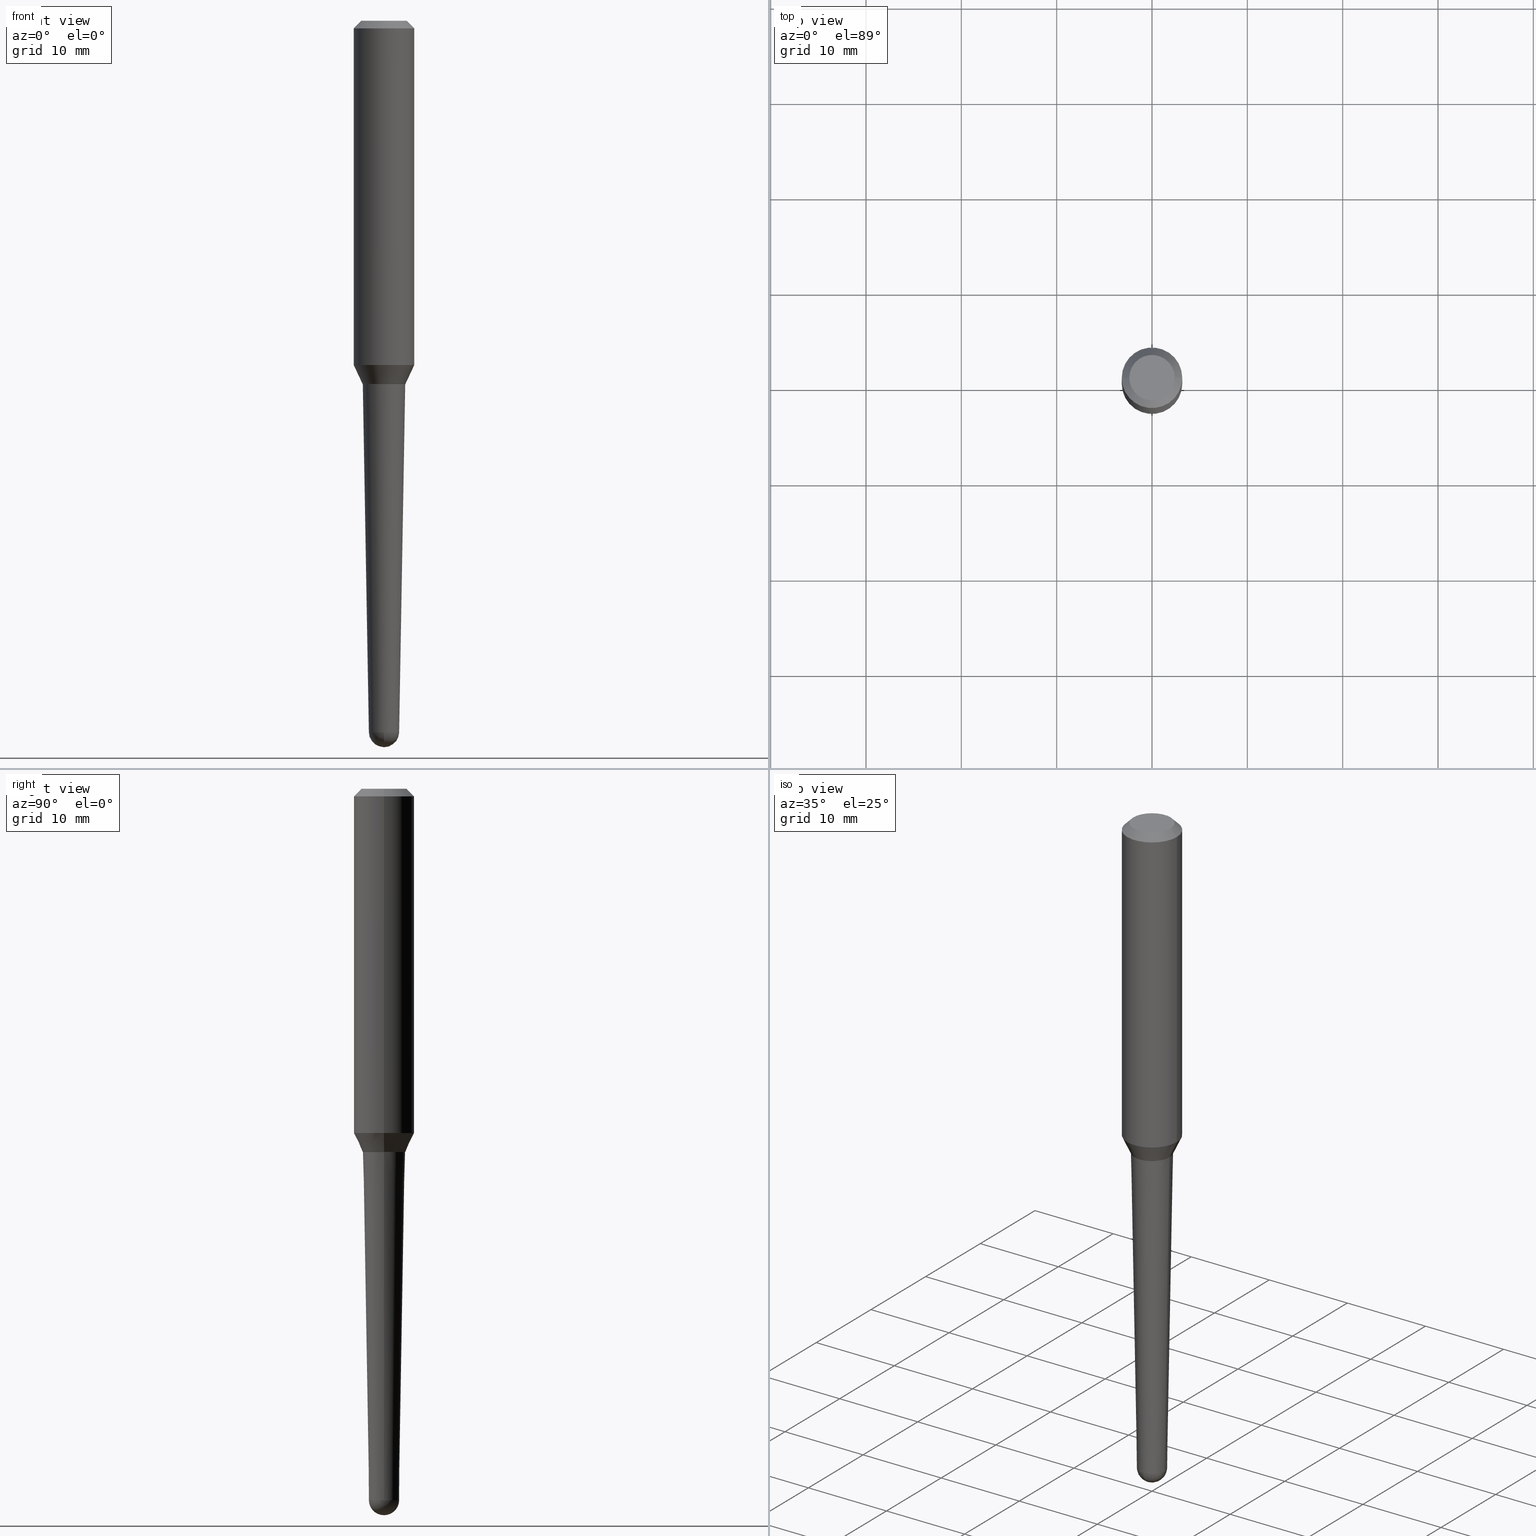
[diagram: canonical four-view strip — front | top / right | iso, engineering-drawing reading convention]
A machine part, canonical four-view strip (front | top / right | iso — engineering-drawing reading convention). The complete STEP part file that produces these views, byte-faithful:
ISO-10303-21;
HEADER;
FILE_DESCRIPTION (( 'STEP AP203' ),
    '1' );
FILE_NAME ('32402.STEP',
    '2024-03-04T15:23:01',
    ( '' ),
    ( '' ),
    'SwSTEP 2.0',
    'SolidWorks 2023',
    '' );
FILE_SCHEMA (( 'CONFIG_CONTROL_DESIGN' ));
ENDSEC;

DATA;
#1 = CARTESIAN_POINT ( 'NONE',  ( 0.000000000000000000, 0.000000000000000000, 0.000000000000000000 ) ) ;
#2 = ORIENTED_EDGE ( 'NONE', *, *, #355, .T. ) ;
#3 = ADVANCED_FACE ( 'NONE', ( #225 ), #180, .T. ) ;
#4 = CIRCLE ( 'NONE', #5, 0.06249048094727445435 ) ;
#5 = AXIS2_PLACEMENT_3D ( 'NONE', #268, #382, #14 ) ;
#6 = PERSON_AND_ORGANIZATION ( #212, #401 ) ;
#7 = DIRECTION ( 'NONE',  ( -2.445468806185136597E-29, 3.491481338843145583E-15, 1.000000000000000000 ) ) ;
#8 = PERSON_AND_ORGANIZATION_ROLE ( 'design_owner' ) ;
#9 = FACE_OUTER_BOUND ( 'NONE', #251, .T. ) ;
#10 = EDGE_LOOP ( 'NONE', ( #157, #308, #298, #194 ) ) ;
#11 = DIMENSIONAL_EXPONENTS ( 1.000000000000000000, 0.000000000000000000, 0.000000000000000000, 0.000000000000000000, 0.000000000000000000, 0.000000000000000000, 0.000000000000000000 ) ;
#12 = CC_DESIGN_PERSON_AND_ORGANIZATION_ASSIGNMENT ( #153, #423, ( #346 ) ) ;
#13 = APPROVAL_STATUS ( 'not_yet_approved' ) ;
#14 = DIRECTION ( 'NONE',  ( 1.000000000000000000, -6.982962677686258822E-15, 0.000000000000000000 ) ) ;
#15 = ORIENTED_EDGE ( 'NONE', *, *, #173, .T. ) ;
#16 = CALENDAR_DATE ( 2024, 4, 3 ) ;
#17 = DIRECTION ( 'NONE',  ( -6.982962677686265922E-15, -1.000000000000000000, 0.000000000000000000 ) ) ;
#18 = CIRCLE ( 'NONE', #284, 0.08810117633705687179 ) ;
#19 = ORIENTED_EDGE ( 'NONE', *, *, #72, .F. ) ;
#20 = PERSON_AND_ORGANIZATION ( #212, #401 ) ;
#21 = CARTESIAN_POINT ( 'NONE',  ( 3.476093222021523677E-29, -4.962939860885091843E-15, -1.421442470756407950 ) ) ;
#22 = ORIENTED_EDGE ( 'NONE', *, *, #271, .T. ) ;
#23 = CARTESIAN_POINT ( 'NONE',  ( -0.1249999999999996808, -1.647845906661844056E-15, -0.03125000000000002082 ) ) ;
#24 = CC_DESIGN_APPROVAL ( #348, ( #346 ) ) ;
#25 = EDGE_CURVE ( 'NONE', #124, #235, #216, .T. ) ;
#26 = COORDINATED_UNIVERSAL_TIME_OFFSET ( 5, 0, .BEHIND. ) ;
#27 = DIRECTION ( 'NONE',  ( -2.445468806185136597E-29, 3.491481338843145583E-15, 1.000000000000000000 ) ) ;
#28 = AXIS2_PLACEMENT_3D ( 'NONE', #457, #414, #208 ) ;
#29 = DIRECTION ( 'NONE',  ( 1.000000000000000000, -6.982962677686266711E-15, 4.852736867747369010E-29 ) ) ;
#30 = CARTESIAN_POINT ( 'NONE',  ( 7.436103775026404221E-29, -9.894575986595534167E-15, -2.937500000000000000 ) ) ;
#31 = AXIS2_PLACEMENT_3D ( 'NONE', #462, #394, #75 ) ;
#32 = CARTESIAN_POINT ( 'NONE',  ( -0.1249999999999996808, 7.637615428719326605E-16, -0.03125000000000002082 ) ) ;
#33 = LOCAL_TIME ( 10, 23, 1.000000000000000000, #26 ) ;
#34 = DIRECTION ( 'NONE',  ( -2.445468806185136597E-29, 3.491481338843145583E-15, 1.000000000000000000 ) ) ;
#35 = ADVANCED_FACE ( 'NONE', ( #79 ), #37, .T. ) ;
#36 = DATE_AND_TIME ( #147, #203 ) ;
#37 = CONICAL_SURFACE ( 'NONE', #300, 0.06249048094727445435, 0.01745329251994320874 ) ;
#38 = VERTEX_POINT ( 'NONE', #154 ) ;
#39 = AXIS2_PLACEMENT_3D ( 'NONE', #106, #454, #210 ) ;
#40 = PERSON_AND_ORGANIZATION ( #212, #401 ) ;
#41 = FACE_OUTER_BOUND ( 'NONE', #164, .T. ) ;
#42 = EDGE_CURVE ( 'NONE', #177, #460, #82, .T. ) ;
#43 = DIRECTION ( 'NONE',  ( -2.445468806185136877E-29, 3.491481338843145188E-15, 1.000000000000000000 ) ) ;
#44 = APPROVAL_DATE_TIME ( #365, #213 ) ;
#45 = LINE ( 'NONE', #297, #415 ) ;
#46 = AXIS2_PLACEMENT_3D ( 'NONE', #354, #384, #68 ) ;
#47 = CARTESIAN_POINT ( 'NONE',  ( 0.08810117633705687179, -5.852429234486642122E-15, -1.499999999999999778 ) ) ;
#48 = EDGE_CURVE ( 'NONE', #459, #85, #128, .T. ) ;
#49 = VERTEX_POINT ( 'NONE', #47 ) ;
#50 = ORIENTED_EDGE ( 'NONE', *, *, #418, .T. ) ;
#51 = DESIGN_CONTEXT ( 'detailed design', #273, 'design' ) ;
#52 = ORIENTED_EDGE ( 'NONE', *, *, #42, .T. ) ;
#53 = DIRECTION ( 'NONE',  ( -2.445468806185136597E-29, 3.491481338843145583E-15, 1.000000000000000000 ) ) ;
#54 = ORIENTED_EDGE ( 'NONE', *, *, #137, .F. ) ;
#55 = DATE_AND_TIME ( #112, #80 ) ;
#56 = CIRCLE ( 'NONE', #353, 0.08810117633705687179 ) ;
#57 = DIRECTION ( 'NONE',  ( 1.000000000000000000, -6.982962677686265922E-15, 4.876176775795935793E-29 ) ) ;
#58 = EDGE_LOOP ( 'NONE', ( #19, #445, #340, #89 ) ) ;
#59 = ADVANCED_FACE ( 'NONE', ( #9 ), #270, .T. ) ;
#60 = DIRECTION ( 'NONE',  ( 1.000000000000000000, -6.982962677686266711E-15, 0.000000000000000000 ) ) ;
#61 = VERTEX_POINT ( 'NONE', #362 ) ;
#62 = DIRECTION ( 'NONE',  ( -2.445468806185136597E-29, 3.491481338843145583E-15, 1.000000000000000000 ) ) ;
#63 = APPROVAL_PERSON_ORGANIZATION ( #218, #213, #81 ) ;
#64 = DIRECTION ( 'NONE',  ( 0.7071067811866441621, -2.468850131083269169E-15, 0.7071067811864508723 ) ) ;
#65 = AXIS2_PLACEMENT_3D ( 'NONE', #100, #175, #134 ) ;
#66 = ADVANCED_FACE ( 'NONE', ( #41 ), #366, .F. ) ;
#67 = DIRECTION ( 'NONE',  ( -2.445468806185136597E-29, 3.491481338843145583E-15, 1.000000000000000000 ) ) ;
#68 = DIRECTION ( 'NONE',  ( 1.000000000000000000, -6.982962677686267499E-15, 4.885088446865700968E-29 ) ) ;
#69 = CARTESIAN_POINT ( 'NONE',  ( 0.09374999999999962530, -8.049213644256825609E-16, 1.922866154350509790E-16 ) ) ;
#70 = VECTOR ( 'NONE', #441, 39.37007874015748143 ) ;
#71 = DIRECTION ( 'NONE',  ( -6.982962677686265922E-15, -1.000000000000000000, 0.000000000000000000 ) ) ;
#72 = EDGE_CURVE ( 'NONE', #197, #38, #45, .T. ) ;
#73 = DIRECTION ( 'NONE',  ( 1.000000000000000000, 0.000000000000000000, 0.000000000000000000 ) ) ;
#74 = PERSON_AND_ORGANIZATION_ROLE ( 'classification_officer' ) ;
#75 = DIRECTION ( 'NONE',  ( 1.000000000000000000, -6.982962677686258822E-15, 0.000000000000000000 ) ) ;
#76 = ADVANCED_FACE ( 'NONE', ( #184 ), #133, .T. ) ;
#77 = ORIENTED_EDGE ( 'NONE', *, *, #220, .F. ) ;
#78 = APPLICATION_PROTOCOL_DEFINITION ( 'international standard', 'config_control_design', 1994, #446 ) ;
#79 = FACE_OUTER_BOUND ( 'NONE', #92, .T. ) ;
#80 = LOCAL_TIME ( 10, 23, 1.000000000000000000, #291 ) ;
#81 = APPROVAL_ROLE ( '' ) ;
#82 = LINE ( 'NONE', #364, #96 ) ;
#83 = AXIS2_PLACEMENT_3D ( 'NONE', #243, #67, #352 ) ;
#84 = FACE_OUTER_BOUND ( 'NONE', #162, .T. ) ;
#85 = VERTEX_POINT ( 'NONE', #257 ) ;
#86 = CARTESIAN_POINT ( 'NONE',  ( -4.702309198933221376E-45, 6.713651295007710918E-31, 1.922866154350458761E-16 ) ) ;
#87 = ORIENTED_EDGE ( 'NONE', *, *, #123, .F. ) ;
#88 = CARTESIAN_POINT ( 'NONE',  ( -0.06249048094727445435, -9.816013281901434957E-15, -2.938590775402329935 ) ) ;
#89 = ORIENTED_EDGE ( 'NONE', *, *, #236, .F. ) ;
#90 = EDGE_CURVE ( 'NONE', #200, #285, #289, .T. ) ;
#91 = CARTESIAN_POINT ( 'NONE',  ( 7.642090019328557120E-31, -1.091087918388483734E-16, -0.03125000000000002082 ) ) ;
#92 = EDGE_LOOP ( 'NONE', ( #328, #254, #392, #107, #141 ) ) ;
#93 = CARTESIAN_POINT ( 'NONE',  ( 3.476093222021523677E-29, -4.962939860885091843E-15, -1.421442470756407950 ) ) ;
#94 = CARTESIAN_POINT ( 'NONE',  ( 0.1250000000000001665, -5.835810195595875971E-15, -1.421442470756407950 ) ) ;
#95 = PRODUCT_DEFINITION ( 'UNKNOWN', '', #346, #51 ) ;
#96 = VECTOR ( 'NONE', #43, 39.37007874015748143 ) ;
#97 = DIRECTION ( 'NONE',  ( 1.000000000000000000, -6.982962677686265922E-15, 4.883557194083112340E-29 ) ) ;
#98 = VECTOR ( 'NONE', #207, 39.37007874015748854 ) ;
#99 = FACE_OUTER_BOUND ( 'NONE', #111, .T. ) ;
#100 = CARTESIAN_POINT ( 'NONE',  ( 3.668203209277704895E-29, -5.237222008264718177E-15, -1.500000000000000222 ) ) ;
#101 = CIRCLE ( 'NONE', #258, 0.06249999999999965999 ) ;
#102 = ADVANCED_FACE ( 'NONE', ( #84 ), #238, .T. ) ;
#103 = DIRECTION ( 'NONE',  ( -2.445468806185136597E-29, 3.491481338843145583E-15, 1.000000000000000000 ) ) ;
#104 = CLOSED_SHELL ( 'NONE', ( #430, #318, #386, #400, #155, #76, #449, #342, #3, #66 ) ) ;
#105 = AXIS2_PLACEMENT_3D ( 'NONE', #246, #313, #206 ) ;
#106 = CARTESIAN_POINT ( 'NONE',  ( 7.186232075389790477E-29, -1.026003485481384412E-14, -2.938590775402329935 ) ) ;
#107 = ORIENTED_EDGE ( 'NONE', *, *, #260, .T. ) ;
#108 = ORIENTED_EDGE ( 'NONE', *, *, #72, .T. ) ;
#109 = AXIS2_PLACEMENT_3D ( 'NONE', #402, #434, #403 ) ;
#110 = DIRECTION ( 'NONE',  ( -1.000000000000000000, 6.982962677686265922E-15, -4.876176775795935793E-29 ) ) ;
#111 = EDGE_LOOP ( 'NONE', ( #267, #108, #321, #146 ) ) ;
#112 = CALENDAR_DATE ( 2024, 4, 3 ) ;
#113 = DIRECTION ( 'NONE',  ( -0.7071067811866441621, 7.493145998870704414E-15, 0.7071067811864508723 ) ) ;
#114 = EDGE_CURVE ( 'NONE', #49, #197, #56, .T. ) ;
#115 =( NAMED_UNIT ( * ) SI_UNIT ( $, .STERADIAN. ) SOLID_ANGLE_UNIT ( ) );
#116 = EDGE_LOOP ( 'NONE', ( #192, #202, #368, #233 ) ) ;
#117 = UNCERTAINTY_MEASURE_WITH_UNIT (LENGTH_MEASURE( 1.000000000000000082E-05 ), #143, 'distance_accuracy_value', 'NONE');
#118 = VERTEX_POINT ( 'NONE', #438 ) ;
#119 = CIRCLE ( 'NONE', #277, 0.1250000000000001665 ) ;
#120 = DIRECTION ( 'NONE',  ( -2.438088387897960049E-29, 3.491481338843145188E-15, 1.000000000000000000 ) ) ;
#121 = ORIENTED_EDGE ( 'NONE', *, *, #236, .T. ) ;
#122 = CARTESIAN_POINT ( 'NONE',  ( 0.1249999999999996808, -9.666710415602875877E-16, -0.03125000000000002082 ) ) ;
#123 = EDGE_CURVE ( 'NONE', #235, #460, #338, .T. ) ;
#124 = VERTEX_POINT ( 'NONE', #447 ) ;
#125 = DATE_AND_TIME ( #16, #33 ) ;
#126 = CARTESIAN_POINT ( 'NONE',  ( 7.642090019328557120E-31, -1.091087918388483734E-16, -0.03125000000000002082 ) ) ;
#127 = ORIENTED_EDGE ( 'NONE', *, *, #130, .F. ) ;
#128 = CIRCLE ( 'NONE', #359, 0.08760117633705687135 ) ;
#129 = CARTESIAN_POINT ( 'NONE',  ( 0.08860117633705663631, -5.854174975156063626E-15, -1.499500000000000277 ) ) ;
#130 = EDGE_CURVE ( 'NONE', #124, #177, #209, .T. ) ;
#131 = CARTESIAN_POINT ( 'NONE',  ( 4.440215729124799627E-16, 0.06249048094726421254, -2.938590775402329935 ) ) ;
#132 = DIRECTION ( 'NONE',  ( -2.445468806185136597E-29, 3.491481338843145583E-15, 1.000000000000000000 ) ) ;
#133 = CONICAL_SURFACE ( 'NONE', #327, 0.08810117633705687179, 0.7853981633975849475 ) ;
#134 = DIRECTION ( 'NONE',  ( -1.000000000000000000, 6.982962677686265922E-15, -4.876176775795935793E-29 ) ) ;
#135 = CIRCLE ( 'NONE', #39, 0.06249048094727445435 ) ;
#136 = DIRECTION ( 'NONE',  ( -2.445468806185136597E-29, 3.491481338843145583E-15, 1.000000000000000000 ) ) ;
#137 = EDGE_CURVE ( 'NONE', #374, #460, #380, .T. ) ;
#138 = DIRECTION ( 'NONE',  ( 1.000000000000000000, -7.105427357601001070E-15, 4.926315508542082329E-29 ) ) ;
#139 = CONICAL_SURFACE ( 'NONE', #309, 0.08860117633705663631, 0.4363323129985682836 ) ;
#140 = CARTESIAN_POINT ( 'NONE',  ( 3.666980474874613215E-29, -5.235476267595297462E-15, -1.499500000000000277 ) ) ;
#141 = ORIENTED_EDGE ( 'NONE', *, *, #355, .F. ) ;
#142 = CC_DESIGN_PERSON_AND_ORGANIZATION_ASSIGNMENT ( #6, #74, ( #280 ) ) ;
#143 =( CONVERSION_BASED_UNIT ( 'INCH', #461 ) LENGTH_UNIT ( ) NAMED_UNIT ( #11 ) );
#144 = EDGE_LOOP ( 'NONE', ( #54, #398, #407, #442 ) ) ;
#145 = ORIENTED_EDGE ( 'NONE', *, *, #276, .T. ) ;
#146 = ORIENTED_EDGE ( 'NONE', *, *, #205, .F. ) ;
#147 = CALENDAR_DATE ( 2024, 4, 3 ) ;
#148 = CARTESIAN_POINT ( 'NONE',  ( 7.186232075389790477E-29, -1.026003485481384412E-14, -2.938590775402329935 ) ) ;
#149 = PRODUCT_DEFINITION_SHAPE ( 'NONE', 'NONE',  #95 ) ;
#150 = AXIS2_PLACEMENT_3D ( 'NONE', #408, #120, #57 ) ;
#151 = ORIENTED_EDGE ( 'NONE', *, *, #288, .F. ) ;
#152 = AXIS2_PLACEMENT_3D ( 'NONE', #311, #196, #337 ) ;
#153 = PERSON_AND_ORGANIZATION ( #212, #401 ) ;
#154 = CARTESIAN_POINT ( 'NONE',  ( -0.08860117633705663631, -4.605927045334344517E-15, -1.499500000000000277 ) ) ;
#155 = ADVANCED_FACE ( 'NONE', ( #450 ), #310, .F. ) ;
#156 = DIRECTION ( 'NONE',  ( 1.000000000000000000, -6.982962677686265922E-15, 0.000000000000000000 ) ) ;
#157 = ORIENTED_EDGE ( 'NONE', *, *, #370, .F. ) ;
#158 = CARTESIAN_POINT ( 'NONE',  ( 3.668203209277704335E-29, -5.237222008264717388E-15, -1.499999999999999778 ) ) ;
#159 = ORIENTED_EDGE ( 'NONE', *, *, #178, .F. ) ;
#160 = AXIS2_PLACEMENT_3D ( 'NONE', #432, #429, #110 ) ;
#161 = LINE ( 'NONE', #375, #70 ) ;
#162 = EDGE_LOOP ( 'NONE', ( #372, #325, #159, #231 ) ) ;
#163 = DIRECTION ( 'NONE',  ( -2.445468806185136597E-29, 3.491481338843145583E-15, 1.000000000000000000 ) ) ;
#164 = EDGE_LOOP ( 'NONE', ( #226, #287 ) ) ;
#165 = AXIS2_PLACEMENT_3D ( 'NONE', #1, #259, #73 ) ;
#166 = DIRECTION ( 'NONE',  ( 0.7071067811865455743, -7.319954787623248157E-15, -0.7071067811865493491 ) ) ;
#167 = CONICAL_SURFACE ( 'NONE', #28, 0.08810117633705687179, 0.7853981633975849475 ) ;
#168 = DIRECTION ( 'NONE',  ( -2.445468806185136597E-29, 3.491481338843145583E-15, 1.000000000000000000 ) ) ;
#169 = FACE_OUTER_BOUND ( 'NONE', #193, .T. ) ;
#170 = CARTESIAN_POINT ( 'NONE',  ( -0.06249048094727445435, -7.215395747631399809E-15, -2.938590775402329935 ) ) ;
#171 = VECTOR ( 'NONE', #232, 39.37007874015748143 ) ;
#172 = DIRECTION ( 'NONE',  ( 1.000000000000000000, -6.982962677686268288E-15, 0.000000000000000000 ) ) ;
#173 = EDGE_CURVE ( 'NONE', #304, #85, #347, .T. ) ;
#174 = DIRECTION ( 'NONE',  ( 1.000000000000000000, -6.982962677686268288E-15, 0.000000000000000000 ) ) ;
#175 = DIRECTION ( 'NONE',  ( 2.438088387897960049E-29, -3.491481338843145188E-15, -1.000000000000000000 ) ) ;
#176 = LOCAL_TIME ( 10, 23, 1.000000000000000000, #286 ) ;
#177 = VERTEX_POINT ( 'NONE', #94 ) ;
#178 = EDGE_CURVE ( 'NONE', #304, #200, #4, .T. ) ;
#179 = APPROVAL_ROLE ( '' ) ;
#180 = CONICAL_SURFACE ( 'NONE', #239, 0.1249999999999996808, 0.7853981633974456145 ) ;
#181 = AXIS2_PLACEMENT_3D ( 'NONE', #389, #97, #279 ) ;
#182 = VERTEX_POINT ( 'NONE', #131 ) ;
#183 = SECURITY_CLASSIFICATION_LEVEL ( 'unclassified' ) ;
#184 = FACE_OUTER_BOUND ( 'NONE', #58, .T. ) ;
#185 = DATE_TIME_ROLE ( 'creation_date' ) ;
#186 = ORIENTED_EDGE ( 'NONE', *, *, #421, .T. ) ;
#187 = LOCAL_TIME ( 10, 23, 1.000000000000000000, #224 ) ;
#188 = MANIFOLD_SOLID_BREP ( 'Body-Move/Copy2[2]', #104 ) ;
#189 = DATE_AND_TIME ( #296, #187 ) ;
#190 = ORIENTED_EDGE ( 'NONE', *, *, #437, .F. ) ;
#191 = CARTESIAN_POINT ( 'NONE',  ( 3.668203209277704335E-29, -5.237222008264717388E-15, -1.499999999999999778 ) ) ;
#192 = ORIENTED_EDGE ( 'NONE', *, *, #288, .T. ) ;
#193 = EDGE_LOOP ( 'NONE', ( #344, #265, #52, #87 ) ) ;
#194 = ORIENTED_EDGE ( 'NONE', *, *, #90, .F. ) ;
#195 = APPROVAL ( #13, 'UNSPECIFIED' ) ;
#196 = DIRECTION ( 'NONE',  ( -2.445468806185136597E-29, 3.491481338843145583E-15, 1.000000000000000000 ) ) ;
#197 = VERTEX_POINT ( 'NONE', #264 ) ;
#198 = CIRCLE ( 'NONE', #211, 0.09374999999999962530 ) ;
#199 = DIRECTION ( 'NONE',  ( 1.000000000000000000, -6.982962677686268288E-15, 0.000000000000000000 ) ) ;
#200 = VERTEX_POINT ( 'NONE', #343 ) ;
#201 = LINE ( 'NONE', #345, #416 ) ;
#202 = ORIENTED_EDGE ( 'NONE', *, *, #25, .T. ) ;
#203 = LOCAL_TIME ( 10, 23, 1.000000000000000000, #425 ) ;
#204 = DIRECTION ( 'NONE',  ( 1.000000000000000000, -6.982962677686265922E-15, 4.883557194083112340E-29 ) ) ;
#205 = EDGE_CURVE ( 'NONE', #49, #229, #303, .T. ) ;
#206 = DIRECTION ( 'NONE',  ( -1.000000000000000000, 6.982962677686266711E-15, 0.000000000000000000 ) ) ;
#207 = DIRECTION ( 'NONE',  ( -0.7071067811865455743, 2.468850131082236945E-15, -0.7071067811865493491 ) ) ;
#208 = DIRECTION ( 'NONE',  ( 1.000000000000000000, -6.982962677686265922E-15, 0.000000000000000000 ) ) ;
#209 = CIRCLE ( 'NONE', #315, 0.1250000000000001665 ) ;
#210 = DIRECTION ( 'NONE',  ( 1.000000000000000000, -6.982962677686258822E-15, 0.000000000000000000 ) ) ;
#211 = AXIS2_PLACEMENT_3D ( 'NONE', #86, #168, #306 ) ;
#212 = PERSON ( 'UNSPECIFIED', 'UNSPECIFIED', 'UNSPECIFIED', ('UNSPECIFIED'), ('UNSPECIFIED'), ('UNSPECIFIED') ) ;
#213 = APPROVAL ( #221, 'UNSPECIFIED' ) ;
#214 = CC_DESIGN_SECURITY_CLASSIFICATION ( #280, ( #346 ) ) ;
#215 = APPLICATION_PROTOCOL_DEFINITION ( 'international standard', 'config_control_design', 1994, #273 ) ;
#216 = LINE ( 'NONE', #219, #436 ) ;
#217 = VECTOR ( 'NONE', #64, 39.37007874015748143 ) ;
#218 = PERSON_AND_ORGANIZATION ( #212, #401 ) ;
#219 = CARTESIAN_POINT ( 'NONE',  ( -0.1249999999999999306, 8.881784197001268101E-16, 5.931196827434234637E-16 ) ) ;
#220 = EDGE_CURVE ( 'NONE', #229, #177, #161, .T. ) ;
#221 = APPROVAL_STATUS ( 'not_yet_approved' ) ;
#222 = DIRECTION ( 'NONE',  ( 1.000000000000000000, -6.982962677686258822E-15, 0.000000000000000000 ) ) ;
#223 = APPROVAL_PERSON_ORGANIZATION ( #40, #348, #179 ) ;
#224 = COORDINATED_UNIVERSAL_TIME_OFFSET ( 5, 0, .BEHIND. ) ;
#225 = FACE_OUTER_BOUND ( 'NONE', #144, .T. ) ;
#226 = ORIENTED_EDGE ( 'NONE', *, *, #381, .T. ) ;
#227 = APPROVAL_ROLE ( '' ) ;
#228 = CC_DESIGN_DATE_AND_TIME_ASSIGNMENT ( #189, #185, ( #95 ) ) ;
#229 = VERTEX_POINT ( 'NONE', #129 ) ;
#230 = LINE ( 'NONE', #444, #329 ) ;
#231 = ORIENTED_EDGE ( 'NONE', *, *, #421, .F. ) ;
#232 = DIRECTION ( 'NONE',  ( -0.01745240643728342492, 3.614956375479315570E-15, 0.9998476951563912696 ) ) ;
#233 = ORIENTED_EDGE ( 'NONE', *, *, #42, .F. ) ;
#234 = CARTESIAN_POINT ( 'NONE',  ( 0.08810117633705687179, -5.852429234486642122E-15, -1.499999999999999778 ) ) ;
#235 = VERTEX_POINT ( 'NONE', #23 ) ;
#236 = EDGE_CURVE ( 'NONE', #38, #229, #369, .T. ) ;
#237 = DIRECTION ( 'NONE',  ( -2.445468806185136597E-29, 3.491481338843145583E-15, 1.000000000000000000 ) ) ;
#238 = SPHERICAL_SURFACE ( 'NONE', #395, 0.06249999999999965999 ) ;
#239 = AXIS2_PLACEMENT_3D ( 'NONE', #424, #331, #397 ) ;
#240 = AXIS2_PLACEMENT_3D ( 'NONE', #140, #242, #172 ) ;
#241 = PLANE ( 'NONE',  #65 ) ;
#242 = DIRECTION ( 'NONE',  ( -2.445468806185136597E-29, 3.491481338843145583E-15, 1.000000000000000000 ) ) ;
#243 = CARTESIAN_POINT ( 'NONE',  ( 3.666980474874613215E-29, -5.235476267595297462E-15, -1.499500000000000277 ) ) ;
#244 = CARTESIAN_POINT ( 'NONE',  ( -1.450455682483482035E-44, 2.070866303999251778E-30, 5.931196827434296760E-16 ) ) ;
#245 = AXIS2_PLACEMENT_3D ( 'NONE', #30, #417, #71 ) ;
#246 = CARTESIAN_POINT ( 'NONE',  ( 7.642090019328557120E-31, -1.091087918388483734E-16, -0.03125000000000002082 ) ) ;
#247 = EDGE_CURVE ( 'NONE', #197, #49, #18, .T. ) ;
#248 = PERSON_AND_ORGANIZATION ( #212, #401 ) ;
#249 = DIRECTION ( 'NONE',  ( 1.000000000000000000, -6.982962677686271444E-15, 0.000000000000000000 ) ) ;
#250 = AXIS2_PLACEMENT_3D ( 'NONE', #126, #237, #266 ) ;
#251 = EDGE_LOOP ( 'NONE', ( #186, #15, #409, #269, #145 ) ) ;
#252 = EDGE_CURVE ( 'NONE', #374, #118, #198, .T. ) ;
#253 = CARTESIAN_POINT ( 'NONE',  ( 0.1249999999999996808, -9.819791265496294812E-16, -0.03125000000000002082 ) ) ;
#254 = ORIENTED_EDGE ( 'NONE', *, *, #178, .T. ) ;
#255 = EDGE_LOOP ( 'NONE', ( #262, #2 ) ) ;
#256 = CALENDAR_DATE ( 2024, 4, 3 ) ;
#257 = CARTESIAN_POINT ( 'NONE',  ( -0.08760117633705687135, -4.614778213361364662E-15, -1.500000000000000222 ) ) ;
#258 = AXIS2_PLACEMENT_3D ( 'NONE', #455, #138, #281 ) ;
#259 = DIRECTION ( 'NONE',  ( 0.000000000000000000, 0.000000000000000000, 1.000000000000000000 ) ) ;
#260 = EDGE_CURVE ( 'NONE', #285, #459, #230, .T. ) ;
#261 = DIRECTION ( 'NONE',  ( -2.445468806185136597E-29, 3.491481338843145583E-15, 1.000000000000000000 ) ) ;
#262 = ORIENTED_EDGE ( 'NONE', *, *, #48, .T. ) ;
#263 = CIRCLE ( 'NONE', #245, 0.06249999999999965999 ) ;
#264 = CARTESIAN_POINT ( 'NONE',  ( -0.08810117633705687179, -4.608576272508454140E-15, -1.499999999999999778 ) ) ;
#265 = ORIENTED_EDGE ( 'NONE', *, *, #130, .T. ) ;
#266 = DIRECTION ( 'NONE',  ( 1.000000000000000000, -6.982962677686266711E-15, 0.000000000000000000 ) ) ;
#267 = ORIENTED_EDGE ( 'NONE', *, *, #114, .T. ) ;
#268 = CARTESIAN_POINT ( 'NONE',  ( 7.186232075389790477E-29, -1.026003485481384412E-14, -2.938590775402329935 ) ) ;
#269 = ORIENTED_EDGE ( 'NONE', *, *, #260, .F. ) ;
#270 = CONICAL_SURFACE ( 'NONE', #31, 0.06249048094727445435, 0.01745329251994320874 ) ;
#271 = EDGE_CURVE ( 'NONE', #460, #235, #453, .T. ) ;
#272 = DIRECTION ( 'NONE',  ( -0.4226182617406867292, 6.167240084480767403E-15, 0.9063077870366559319 ) ) ;
#273 = APPLICATION_CONTEXT ( 'configuration controlled 3d designs of mechanical parts and assemblies' ) ;
#274 = DIRECTION ( 'NONE',  ( 1.000000000000000000, -6.982962677686265922E-15, 0.000000000000000000 ) ) ;
#275 = FACE_OUTER_BOUND ( 'NONE', #440, .T. ) ;
#276 = EDGE_CURVE ( 'NONE', #285, #182, #388, .T. ) ;
#277 = AXIS2_PLACEMENT_3D ( 'NONE', #93, #62, #385 ) ;
#278 = DIRECTION ( 'NONE',  ( 1.000000000000000000, -6.982962677686271444E-15, 0.000000000000000000 ) ) ;
#279 = DIRECTION ( 'NONE',  ( -6.982962677686265922E-15, -1.000000000000000000, 0.000000000000000000 ) ) ;
#280 = SECURITY_CLASSIFICATION ( '', '', #183 ) ;
#281 = DIRECTION ( 'NONE',  ( 7.105427357601000281E-15, 1.000000000000000000, 0.000000000000000000 ) ) ;
#282 = EDGE_CURVE ( 'NONE', #38, #124, #201, .T. ) ;
#283 = CYLINDRICAL_SURFACE ( 'NONE', #404, 0.1249999999999999306 ) ;
#284 = AXIS2_PLACEMENT_3D ( 'NONE', #158, #53, #274 ) ;
#285 = VERTEX_POINT ( 'NONE', #412 ) ;
#286 = COORDINATED_UNIVERSAL_TIME_OFFSET ( 5, 0, .BEHIND. ) ;
#287 = ORIENTED_EDGE ( 'NONE', *, *, #252, .T. ) ;
#288 = EDGE_CURVE ( 'NONE', #177, #124, #119, .T. ) ;
#289 = CIRCLE ( 'NONE', #109, 0.06249048094727445435 ) ;
#290 = DIRECTION ( 'NONE',  ( -2.445468806185136877E-29, 3.491481338843145188E-15, 1.000000000000000000 ) ) ;
#291 = COORDINATED_UNIVERSAL_TIME_OFFSET ( 5, 0, .BEHIND. ) ;
#292 = CARTESIAN_POINT ( 'NONE',  ( 3.668203209277704895E-29, -5.237222008264718177E-15, -1.500000000000000222 ) ) ;
#293 = ADVANCED_BREP_SHAPE_REPRESENTATION ( '32402', ( #339, #188, #165 ), #319 ) ;
#294 = CC_DESIGN_PERSON_AND_ORGANIZATION_ASSIGNMENT ( #330, #8, ( #427 ) ) ;
#295 = CC_DESIGN_APPROVAL ( #195, ( #280 ) ) ;
#296 = CALENDAR_DATE ( 2024, 4, 3 ) ;
#297 = CARTESIAN_POINT ( 'NONE',  ( -0.08810117633705687179, -4.611225499682563763E-15, -1.499999999999999778 ) ) ;
#298 = ORIENTED_EDGE ( 'NONE', *, *, #276, .F. ) ;
#299 = CARTESIAN_POINT ( 'NONE',  ( 7.436103775026404221E-29, -9.894575986595534167E-15, -2.937500000000000000 ) ) ;
#300 = AXIS2_PLACEMENT_3D ( 'NONE', #148, #7, #222 ) ;
#301 = ORIENTED_EDGE ( 'NONE', *, *, #114, .F. ) ;
#302 = CIRCLE ( 'NONE', #46, 0.09374999999999962530 ) ;
#303 = LINE ( 'NONE', #234, #217 ) ;
#304 = VERTEX_POINT ( 'NONE', #170 ) ;
#305 = SHAPE_DEFINITION_REPRESENTATION ( #149, #293 ) ;
#306 = DIRECTION ( 'NONE',  ( 1.000000000000000000, -6.982962677686267499E-15, 4.885088446865700968E-29 ) ) ;
#307 = ADVANCED_FACE ( 'NONE', ( #356 ), #316, .T. ) ;
#308 = ORIENTED_EDGE ( 'NONE', *, *, #452, .T. ) ;
#309 = AXIS2_PLACEMENT_3D ( 'NONE', #387, #136, #174 ) ;
#310 = PLANE ( 'NONE',  #150 ) ;
#311 = CARTESIAN_POINT ( 'NONE',  ( 7.186232075389790477E-29, -1.026003485481384412E-14, -2.938590775402329935 ) ) ;
#312 = CC_DESIGN_PERSON_AND_ORGANIZATION_ASSIGNMENT ( #248, #393, ( #346 ) ) ;
#313 = DIRECTION ( 'NONE',  ( 2.445468806185136597E-29, -3.491481338843145583E-15, -1.000000000000000000 ) ) ;
#314 = FACE_OUTER_BOUND ( 'NONE', #255, .T. ) ;
#315 = AXIS2_PLACEMENT_3D ( 'NONE', #21, #335, #373 ) ;
#316 = SPHERICAL_SURFACE ( 'NONE', #181, 0.06249999999999965999 ) ;
#317 = FACE_OUTER_BOUND ( 'NONE', #426, .T. ) ;
#318 = ADVANCED_FACE ( 'NONE', ( #419 ), #451, .T. ) ;
#319 =( GEOMETRIC_REPRESENTATION_CONTEXT ( 3 ) GLOBAL_UNCERTAINTY_ASSIGNED_CONTEXT ( ( #117 ) ) GLOBAL_UNIT_ASSIGNED_CONTEXT ( ( #143, #367, #115 ) ) REPRESENTATION_CONTEXT ( 'NONE', 'WORKASPACE' ) );
#320 = CARTESIAN_POINT ( 'NONE',  ( -1.450455682483482035E-44, 2.070866303999251778E-30, 5.931196827434296760E-16 ) ) ;
#321 = ORIENTED_EDGE ( 'NONE', *, *, #418, .F. ) ;
#322 = PERSON_AND_ORGANIZATION_ROLE ( 'creator' ) ;
#323 = AXIS2_PLACEMENT_3D ( 'NONE', #406, #27, #199 ) ;
#324 = DIRECTION ( 'NONE',  ( -2.445468806185136597E-29, 3.491481338843145583E-15, 1.000000000000000000 ) ) ;
#325 = ORIENTED_EDGE ( 'NONE', *, *, #370, .T. ) ;
#326 = APPROVAL_DATE_TIME ( #36, #348 ) ;
#327 = AXIS2_PLACEMENT_3D ( 'NONE', #191, #324, #156 ) ;
#328 = ORIENTED_EDGE ( 'NONE', *, *, #173, .F. ) ;
#329 = VECTOR ( 'NONE', #410, 39.37007874015748143 ) ;
#330 = PERSON_AND_ORGANIZATION ( #212, #401 ) ;
#331 = DIRECTION ( 'NONE',  ( 2.445468806185136597E-29, -3.491481338843145583E-15, -1.000000000000000000 ) ) ;
#332 = ORIENTED_EDGE ( 'NONE', *, *, #282, .T. ) ;
#333 = ADVANCED_FACE ( 'NONE', ( #314 ), #241, .F. ) ;
#334 = APPROVAL_DATE_TIME ( #125, #195 ) ;
#335 = DIRECTION ( 'NONE',  ( -2.445468806185136597E-29, 3.491481338843145583E-15, 1.000000000000000000 ) ) ;
#336 = ORIENTED_EDGE ( 'NONE', *, *, #282, .F. ) ;
#337 = DIRECTION ( 'NONE',  ( 1.000000000000000000, -6.982962677686258822E-15, 0.000000000000000000 ) ) ;
#338 = CIRCLE ( 'NONE', #250, 0.1249999999999996808 ) ;
#339 = MANIFOLD_SOLID_BREP ( 'Body-Move/Copy2[1]', #428 ) ;
#340 = ORIENTED_EDGE ( 'NONE', *, *, #205, .T. ) ;
#341 = CONICAL_SURFACE ( 'NONE', #83, 0.08860117633705663631, 0.4363323129985682836 ) ;
#342 = ADVANCED_FACE ( 'NONE', ( #169 ), #283, .T. ) ;
#343 = CARTESIAN_POINT ( 'NONE',  ( -4.363686961654078487E-16, -0.06249048094728436309, -2.938590775402329935 ) ) ;
#344 = ORIENTED_EDGE ( 'NONE', *, *, #25, .F. ) ;
#345 = CARTESIAN_POINT ( 'NONE',  ( -0.08860117633705663631, -4.605927045334344517E-15, -1.499500000000000277 ) ) ;
#346 = PRODUCT_DEFINITION_FORMATION_WITH_SPECIFIED_SOURCE ( 'ANY', '', #427, .NOT_KNOWN. ) ;
#347 = LINE ( 'NONE', #88, #171 ) ;
#348 = APPROVAL ( #357, 'UNSPECIFIED' ) ;
#349 = LINE ( 'NONE', #32, #98 ) ;
#350 = PRODUCT_RELATED_PRODUCT_CATEGORY ( 'detail', '', ( #427 ) ) ;
#351 = FACE_OUTER_BOUND ( 'NONE', #405, .T. ) ;
#352 = DIRECTION ( 'NONE',  ( 1.000000000000000000, -6.982962677686268288E-15, 0.000000000000000000 ) ) ;
#353 = AXIS2_PLACEMENT_3D ( 'NONE', #371, #163, #413 ) ;
#354 = CARTESIAN_POINT ( 'NONE',  ( -4.702309198933221376E-45, 6.713651295007710918E-31, 1.922866154350458761E-16 ) ) ;
#355 = EDGE_CURVE ( 'NONE', #85, #459, #439, .T. ) ;
#356 = FACE_OUTER_BOUND ( 'NONE', #10, .T. ) ;
#357 = APPROVAL_STATUS ( 'not_yet_approved' ) ;
#358 = CC_DESIGN_DATE_AND_TIME_ASSIGNMENT ( #55, #443, ( #280 ) ) ;
#359 = AXIS2_PLACEMENT_3D ( 'NONE', #292, #261, #249 ) ;
#360 =( LENGTH_UNIT ( ) NAMED_UNIT ( * ) SI_UNIT ( $, .METRE. ) );
#361 = AXIS2_PLACEMENT_3D ( 'NONE', #91, #378, #60 ) ;
#362 = CARTESIAN_POINT ( 'NONE',  ( 7.586273180759290019E-29, -1.011662059152056390E-14, -2.999999999999999556 ) ) ;
#363 = PERSON_AND_ORGANIZATION ( #212, #401 ) ;
#364 = CARTESIAN_POINT ( 'NONE',  ( 0.1249999999999999306, -8.728703347107807750E-16, 5.931196827434357896E-16 ) ) ;
#365 = DATE_AND_TIME ( #256, #176 ) ;
#366 = PLANE ( 'NONE',  #160 ) ;
#367 =( NAMED_UNIT ( * ) PLANE_ANGLE_UNIT ( ) SI_UNIT ( $, .RADIAN. ) );
#368 = ORIENTED_EDGE ( 'NONE', *, *, #271, .F. ) ;
#369 = CIRCLE ( 'NONE', #323, 0.08860117633705663631 ) ;
#370 = EDGE_CURVE ( 'NONE', #61, #200, #263, .T. ) ;
#371 = CARTESIAN_POINT ( 'NONE',  ( 3.668203209277704335E-29, -5.237222008264717388E-15, -1.499999999999999778 ) ) ;
#372 = ORIENTED_EDGE ( 'NONE', *, *, #452, .F. ) ;
#373 = DIRECTION ( 'NONE',  ( 1.000000000000000000, -6.982962677686269077E-15, 0.000000000000000000 ) ) ;
#374 = VERTEX_POINT ( 'NONE', #69 ) ;
#375 = CARTESIAN_POINT ( 'NONE',  ( 0.08860117633705663631, -5.854174975156063626E-15, -1.499500000000000277 ) ) ;
#376 = VECTOR ( 'NONE', #166, 39.37007874015748854 ) ;
#377 = ORIENTED_EDGE ( 'NONE', *, *, #220, .T. ) ;
#378 = DIRECTION ( 'NONE',  ( -2.445468806185136597E-29, 3.491481338843145583E-15, 1.000000000000000000 ) ) ;
#379 = ORIENTED_EDGE ( 'NONE', *, *, #247, .F. ) ;
#380 = LINE ( 'NONE', #122, #376 ) ;
#381 = EDGE_CURVE ( 'NONE', #118, #374, #302, .T. ) ;
#382 = DIRECTION ( 'NONE',  ( -2.445468806185136597E-29, 3.491481338843145583E-15, 1.000000000000000000 ) ) ;
#383 = AXIS2_PLACEMENT_3D ( 'NONE', #422, #132, #278 ) ;
#384 = DIRECTION ( 'NONE',  ( -2.445468806185136597E-29, 3.491481338843145583E-15, 1.000000000000000000 ) ) ;
#385 = DIRECTION ( 'NONE',  ( 1.000000000000000000, -6.982962677686269077E-15, 0.000000000000000000 ) ) ;
#386 = ADVANCED_FACE ( 'NONE', ( #275 ), #341, .T. ) ;
#387 = CARTESIAN_POINT ( 'NONE',  ( 3.666980474874613215E-29, -5.235476267595297462E-15, -1.499500000000000277 ) ) ;
#388 = CIRCLE ( 'NONE', #152, 0.06249048094727445435 ) ;
#389 = CARTESIAN_POINT ( 'NONE',  ( 7.436103775026404221E-29, -9.894575986595534167E-15, -2.937500000000000000 ) ) ;
#390 = DIRECTION ( 'NONE',  ( 1.000000000000000000, -6.982962677686266711E-15, 4.852736867747369010E-29 ) ) ;
#391 = CC_DESIGN_PERSON_AND_ORGANIZATION_ASSIGNMENT ( #363, #322, ( #95 ) ) ;
#392 = ORIENTED_EDGE ( 'NONE', *, *, #90, .T. ) ;
#393 = PERSON_AND_ORGANIZATION_ROLE ( 'design_supplier' ) ;
#394 = DIRECTION ( 'NONE',  ( -2.445468806185136597E-29, 3.491481338843145583E-15, 1.000000000000000000 ) ) ;
#395 = AXIS2_PLACEMENT_3D ( 'NONE', #299, #204, #17 ) ;
#396 = CONICAL_SURFACE ( 'NONE', #105, 0.1249999999999996808, 0.7853981633974456145 ) ;
#397 = DIRECTION ( 'NONE',  ( -1.000000000000000000, 6.982962677686266711E-15, 0.000000000000000000 ) ) ;
#398 = ORIENTED_EDGE ( 'NONE', *, *, #381, .F. ) ;
#399 = EDGE_LOOP ( 'NONE', ( #301, #379 ) ) ;
#400 = ADVANCED_FACE ( 'NONE', ( #99 ), #167, .T. ) ;
#401 = ORGANIZATION ( 'UNSPECIFIED', 'UNSPECIFIED', '' ) ;
#402 = CARTESIAN_POINT ( 'NONE',  ( 7.186232075389790477E-29, -1.026003485481384412E-14, -2.938590775402329935 ) ) ;
#403 = DIRECTION ( 'NONE',  ( 1.000000000000000000, -6.982962677686258822E-15, 0.000000000000000000 ) ) ;
#404 = AXIS2_PLACEMENT_3D ( 'NONE', #320, #103, #29 ) ;
#405 = EDGE_LOOP ( 'NONE', ( #336, #121, #377, #127 ) ) ;
#406 = CARTESIAN_POINT ( 'NONE',  ( 3.666980474874613215E-29, -5.235476267595297462E-15, -1.499500000000000277 ) ) ;
#407 = ORIENTED_EDGE ( 'NONE', *, *, #437, .T. ) ;
#408 = CARTESIAN_POINT ( 'NONE',  ( 6.916126796793834121E-29, -5.860105706113002733E-16, -1.499999999999999778 ) ) ;
#409 = ORIENTED_EDGE ( 'NONE', *, *, #48, .F. ) ;
#410 = DIRECTION ( 'NONE',  ( 0.01745240643728342492, 3.369080066536508461E-15, 0.9998476951563912696 ) ) ;
#411 = ORIENTED_EDGE ( 'NONE', *, *, #137, .T. ) ;
#412 = CARTESIAN_POINT ( 'NONE',  ( 0.06249048094727445435, -8.272670652063563358E-15, -2.938590775402329935 ) ) ;
#413 = DIRECTION ( 'NONE',  ( 1.000000000000000000, -6.982962677686265922E-15, 0.000000000000000000 ) ) ;
#414 = DIRECTION ( 'NONE',  ( -2.445468806185136597E-29, 3.491481338843145583E-15, 1.000000000000000000 ) ) ;
#415 = VECTOR ( 'NONE', #113, 39.37007874015748143 ) ;
#416 = VECTOR ( 'NONE', #272, 39.37007874015748143 ) ;
#417 = DIRECTION ( 'NONE',  ( -1.000000000000000000, 6.982962677686265922E-15, -4.883557194083112340E-29 ) ) ;
#418 = EDGE_CURVE ( 'NONE', #229, #38, #458, .T. ) ;
#419 = FACE_OUTER_BOUND ( 'NONE', #116, .T. ) ;
#420 = CARTESIAN_POINT ( 'NONE',  ( 0.08760117633705687135, -5.848937753147799115E-15, -1.500000000000000222 ) ) ;
#421 = EDGE_CURVE ( 'NONE', #182, #304, #135, .T. ) ;
#422 = CARTESIAN_POINT ( 'NONE',  ( 3.668203209277704895E-29, -5.237222008264718177E-15, -1.500000000000000222 ) ) ;
#423 = PERSON_AND_ORGANIZATION_ROLE ( 'creator' ) ;
#424 = CARTESIAN_POINT ( 'NONE',  ( 7.642090019328557120E-31, -1.091087918388483734E-16, -0.03125000000000002082 ) ) ;
#425 = COORDINATED_UNIVERSAL_TIME_OFFSET ( 5, 0, .BEHIND. ) ;
#426 = EDGE_LOOP ( 'NONE', ( #435, #411, #22, #190 ) ) ;
#427 = PRODUCT ( '32402', '32402', '', ( #431 ) ) ;
#428 = CLOSED_SHELL ( 'NONE', ( #59, #307, #102, #35, #333 ) ) ;
#429 = DIRECTION ( 'NONE',  ( 2.438088387897960049E-29, -3.491481338843145188E-15, -1.000000000000000000 ) ) ;
#430 = ADVANCED_FACE ( 'NONE', ( #317 ), #396, .T. ) ;
#431 = MECHANICAL_CONTEXT ( 'NONE', #446, 'mechanical' ) ;
#432 = CARTESIAN_POINT ( 'NONE',  ( -2.351154599466610688E-45, 3.356825647503855459E-31, 9.614330771752293804E-17 ) ) ;
#433 = CC_DESIGN_APPROVAL ( #213, ( #95 ) ) ;
#434 = DIRECTION ( 'NONE',  ( -2.445468806185136597E-29, 3.491481338843145583E-15, 1.000000000000000000 ) ) ;
#435 = ORIENTED_EDGE ( 'NONE', *, *, #252, .F. ) ;
#436 = VECTOR ( 'NONE', #290, 39.37007874015748143 ) ;
#437 = EDGE_CURVE ( 'NONE', #118, #235, #349, .T. ) ;
#438 = CARTESIAN_POINT ( 'NONE',  ( -0.09374999999999962530, 7.092071469525090962E-16, 1.922866154350411183E-16 ) ) ;
#439 = CIRCLE ( 'NONE', #383, 0.08760117633705687135 ) ;
#440 = EDGE_LOOP ( 'NONE', ( #50, #332, #151, #77 ) ) ;
#441 = DIRECTION ( 'NONE',  ( 0.4226182617406867292, 2.132291770428506099E-16, 0.9063077870366559319 ) ) ;
#442 = ORIENTED_EDGE ( 'NONE', *, *, #123, .T. ) ;
#443 = DATE_TIME_ROLE ( 'classification_date' ) ;
#444 = CARTESIAN_POINT ( 'NONE',  ( 0.06249048094727445435, -1.069640355097932523E-14, -2.938590775402329935 ) ) ;
#445 = ORIENTED_EDGE ( 'NONE', *, *, #247, .T. ) ;
#446 = APPLICATION_CONTEXT ( 'configuration controlled 3d designs of mechanical parts and assemblies' ) ;
#447 = CARTESIAN_POINT ( 'NONE',  ( -0.1250000000000001665, -4.074761441184965033E-15, -1.421442470756407950 ) ) ;
#448 = AXIS2_PLACEMENT_3D ( 'NONE', #244, #34, #390 ) ;
#449 = ADVANCED_FACE ( 'NONE', ( #351 ), #139, .T. ) ;
#450 = FACE_OUTER_BOUND ( 'NONE', #399, .T. ) ;
#451 = CYLINDRICAL_SURFACE ( 'NONE', #448, 0.1249999999999999306 ) ;
#452 = EDGE_CURVE ( 'NONE', #61, #182, #101, .T. ) ;
#453 = CIRCLE ( 'NONE', #361, 0.1249999999999996808 ) ;
#454 = DIRECTION ( 'NONE',  ( -2.445468806185136597E-29, 3.491481338843145583E-15, 1.000000000000000000 ) ) ;
#455 = CARTESIAN_POINT ( 'NONE',  ( 7.436103775026404221E-29, -9.894575986595534167E-15, -2.937500000000000000 ) ) ;
#456 = APPROVAL_PERSON_ORGANIZATION ( #20, #195, #227 ) ;
#457 = CARTESIAN_POINT ( 'NONE',  ( 3.668203209277704335E-29, -5.237222008264717388E-15, -1.499999999999999778 ) ) ;
#458 = CIRCLE ( 'NONE', #240, 0.08860117633705663631 ) ;
#459 = VERTEX_POINT ( 'NONE', #420 ) ;
#460 = VERTEX_POINT ( 'NONE', #253 ) ;
#461 = LENGTH_MEASURE_WITH_UNIT ( LENGTH_MEASURE( 0.02539999999999999897 ), #360 );
#462 = CARTESIAN_POINT ( 'NONE',  ( 7.186232075389790477E-29, -1.026003485481384412E-14, -2.938590775402329935 ) ) ;
ENDSEC;
END-ISO-10303-21;
